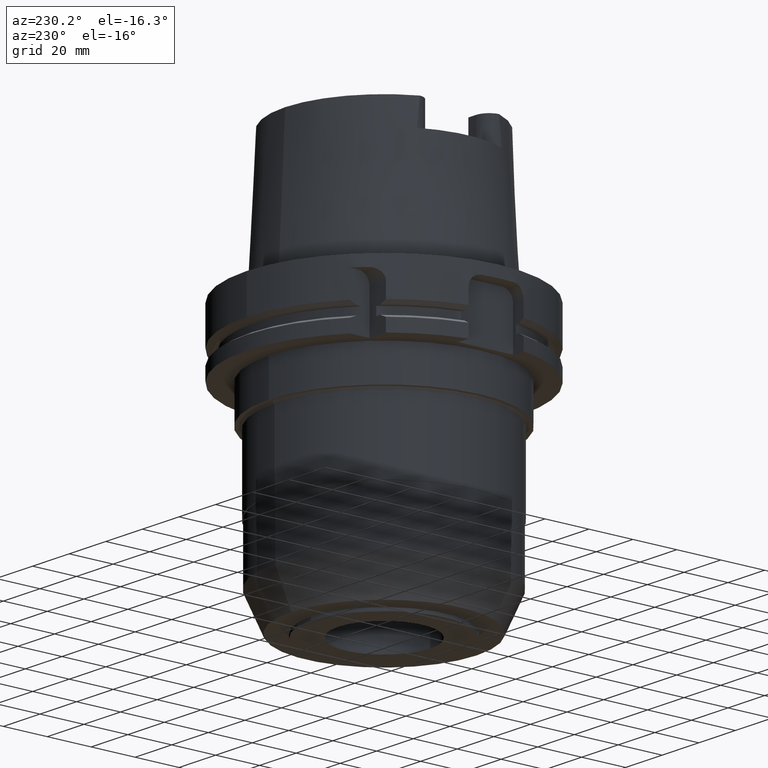
[diagram: clean part render]
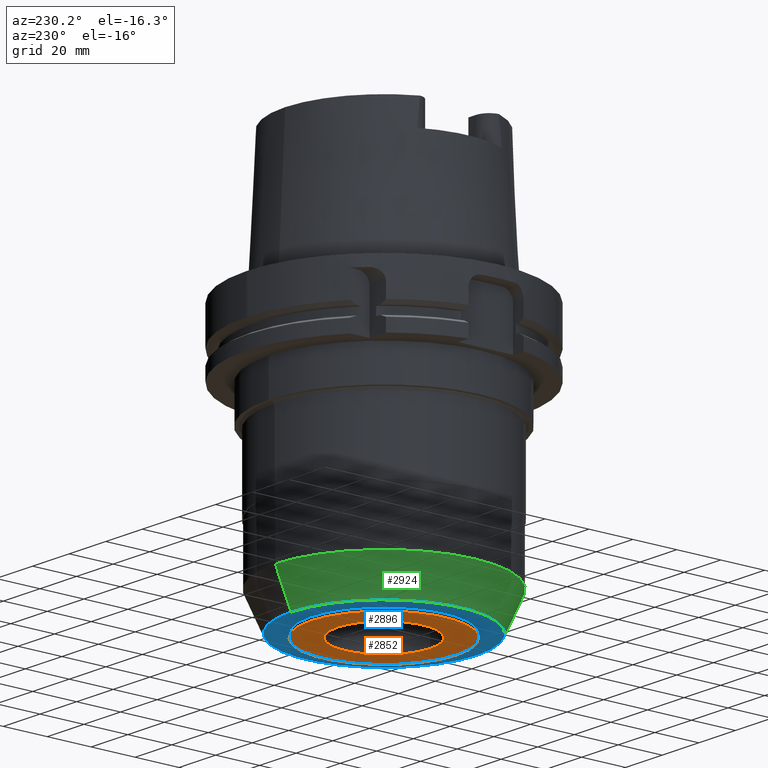
[diagram: same view with three faces highlighted in distinct colors, each labeled with its STEP entity id]
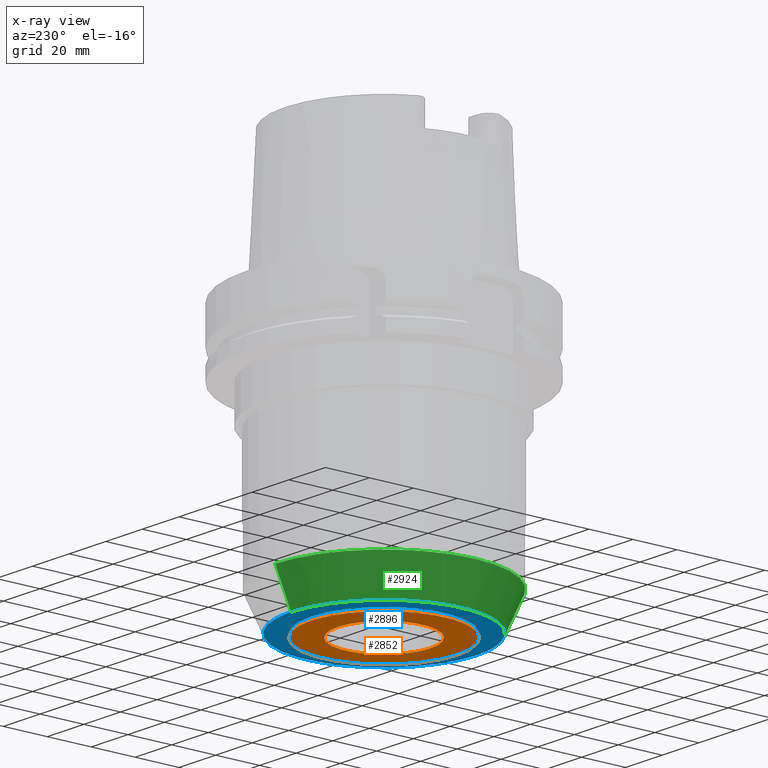
[diagram: x-ray of the same camera — body ghosted, the three highlighted faces saturated]
A machine part, auxiliary view with three faces highlighted in distinct colors.
The next image is the same camera in x-ray (body ghosted, the three faces saturated) — at least one of them is partly hidden behind the body in this view.
Their STEP definitions:

[orange] entity #2852 — the highlighted planar face has unit normal (0, 0, -1).
#689=CARTESIAN_POINT('',(0.E0,1.497130711958E-14,-1.22E2));
#690=DIRECTION('',(0.E0,0.E0,1.E0));
#691=DIRECTION('',(0.E0,-1.E0,0.E0));
#692=AXIS2_PLACEMENT_3D('',#689,#690,#691);
#697=CARTESIAN_POINT('',(0.E0,1.497130711958E-14,-1.22E2));
#698=DIRECTION('',(0.E0,0.E0,1.E0));
#699=DIRECTION('',(0.E0,1.E0,0.E0));
#700=AXIS2_PLACEMENT_3D('',#697,#698,#699);
#705=CARTESIAN_POINT('',(0.E0,1.497130711958E-14,-1.22E2));
#706=DIRECTION('',(0.E0,0.E0,-1.E0));
#707=DIRECTION('',(0.E0,-1.E0,0.E0));
#708=AXIS2_PLACEMENT_3D('',#705,#706,#707);
#713=CARTESIAN_POINT('',(0.E0,1.497130711958E-14,-1.22E2));
#714=DIRECTION('',(0.E0,0.E0,-1.E0));
#715=DIRECTION('',(0.E0,1.E0,0.E0));
#716=AXIS2_PLACEMENT_3D('',#713,#714,#715);
#2093=CARTESIAN_POINT('',(0.E0,2.1E1,-1.22E2));
#2094=VERTEX_POINT('',#2093);
#2095=CARTESIAN_POINT('',(0.E0,-2.1E1,-1.22E2));
#2096=VERTEX_POINT('',#2095);
#2097=CARTESIAN_POINT('',(0.E0,-3.325E1,-1.22E2));
#2098=CARTESIAN_POINT('',(0.E0,3.325E1,-1.22E2));
#2099=VERTEX_POINT('',#2097);
#2100=VERTEX_POINT('',#2098);
#2837=CARTESIAN_POINT('',(0.E0,0.E0,-1.22E2));
#2838=DIRECTION('',(0.E0,0.E0,-1.E0));
#2839=DIRECTION('',(0.E0,-1.E0,0.E0));
#2840=AXIS2_PLACEMENT_3D('',#2837,#2838,#2839);
#2841=PLANE('',#2840);
#2843=ORIENTED_EDGE('',*,*,#2842,.T.);
#2845=ORIENTED_EDGE('',*,*,#2844,.T.);
#2846=EDGE_LOOP('',(#2843,#2845));
#2847=FACE_OUTER_BOUND('',#2846,.F.);
#2848=ORIENTED_EDGE('',*,*,#2830,.T.);
#2849=ORIENTED_EDGE('',*,*,#2819,.T.);
#2850=EDGE_LOOP('',(#2848,#2849));
#2851=FACE_BOUND('',#2850,.F.);
#693=CIRCLE('',#692,3.325E1);
#701=CIRCLE('',#700,3.325E1);
#709=CIRCLE('',#708,2.1E1);
#717=CIRCLE('',#716,2.1E1);
#2819=EDGE_CURVE('',#2094,#2096,#717,.T.);
#2830=EDGE_CURVE('',#2096,#2094,#709,.T.);
#2842=EDGE_CURVE('',#2099,#2100,#693,.T.);
#2844=EDGE_CURVE('',#2100,#2099,#701,.T.);
#2852=ADVANCED_FACE('',(#2847,#2851),#2841,.T.);

[blue] entity #2896 — the highlighted planar face has unit normal (0, 0, -1).
#735=CARTESIAN_POINT('',(0.E0,0.E0,-1.205E2));
#736=DIRECTION('',(0.E0,0.E0,1.E0));
#737=DIRECTION('',(0.E0,-1.E0,0.E0));
#738=AXIS2_PLACEMENT_3D('',#735,#736,#737);
#743=CARTESIAN_POINT('',(0.E0,0.E0,-1.205E2));
#744=DIRECTION('',(0.E0,0.E0,1.E0));
#745=DIRECTION('',(0.E0,1.E0,0.E0));
#746=AXIS2_PLACEMENT_3D('',#743,#744,#745);
#751=CARTESIAN_POINT('',(0.E0,1.497130711958E-14,-1.205E2));
#752=DIRECTION('',(0.E0,0.E0,-1.E0));
#753=DIRECTION('',(0.E0,-1.E0,0.E0));
#754=AXIS2_PLACEMENT_3D('',#751,#752,#753);
#759=CARTESIAN_POINT('',(0.E0,1.497130711958E-14,-1.205E2));
#760=DIRECTION('',(0.E0,0.E0,-1.E0));
#761=DIRECTION('',(0.E0,1.E0,0.E0));
#762=AXIS2_PLACEMENT_3D('',#759,#760,#761);
#2101=CARTESIAN_POINT('',(0.E0,3.325E1,-1.205E2));
#2102=VERTEX_POINT('',#2101);
#2103=CARTESIAN_POINT('',(0.E0,-3.325E1,-1.205E2));
#2104=VERTEX_POINT('',#2103);
#2105=CARTESIAN_POINT('',(0.E0,-4.228729529800E1,-1.205E2));
#2106=CARTESIAN_POINT('',(0.E0,4.228729529800E1,-1.205E2));
#2107=VERTEX_POINT('',#2105);
#2108=VERTEX_POINT('',#2106);
#2881=CARTESIAN_POINT('',(0.E0,0.E0,-1.205E2));
#2882=DIRECTION('',(0.E0,0.E0,-1.E0));
#2883=DIRECTION('',(0.E0,-1.E0,0.E0));
#2884=AXIS2_PLACEMENT_3D('',#2881,#2882,#2883);
#2885=PLANE('',#2884);
#2887=ORIENTED_EDGE('',*,*,#2886,.T.);
#2889=ORIENTED_EDGE('',*,*,#2888,.T.);
#2890=EDGE_LOOP('',(#2887,#2889));
#2891=FACE_OUTER_BOUND('',#2890,.F.);
#2892=ORIENTED_EDGE('',*,*,#2874,.T.);
#2893=ORIENTED_EDGE('',*,*,#2863,.T.);
#2894=EDGE_LOOP('',(#2892,#2893));
#2895=FACE_BOUND('',#2894,.F.);
#739=CIRCLE('',#738,4.228729529800E1);
#747=CIRCLE('',#746,4.228729529800E1);
#755=CIRCLE('',#754,3.325E1);
#763=CIRCLE('',#762,3.325E1);
#2863=EDGE_CURVE('',#2102,#2104,#763,.T.);
#2874=EDGE_CURVE('',#2104,#2102,#755,.T.);
#2886=EDGE_CURVE('',#2107,#2108,#739,.T.);
#2888=EDGE_CURVE('',#2108,#2107,#747,.T.);
#2896=ADVANCED_FACE('',(#2891,#2895),#2885,.T.);

[green] entity #2924 — the highlighted conical surface has half-angle 24 deg.
#743=CARTESIAN_POINT('',(0.E0,0.E0,-1.205E2));
#744=DIRECTION('',(0.E0,0.E0,1.E0));
#745=DIRECTION('',(0.E0,1.E0,0.E0));
#746=AXIS2_PLACEMENT_3D('',#743,#744,#745);
#767=DIRECTION('',(0.E0,-4.067366430758E-1,-9.135454576426E-1));
#768=VECTOR('',#767,1.773310771180E1);
#769=CARTESIAN_POINT('',(0.E0,4.95E1,-1.043E2));
#770=LINE('',#769,#768);
#782=CARTESIAN_POINT('',(0.E0,0.E0,-1.043E2));
#783=DIRECTION('',(0.E0,0.E0,1.E0));
#784=DIRECTION('',(0.E0,1.E0,0.E0));
#785=AXIS2_PLACEMENT_3D('',#782,#783,#784);
#790=DIRECTION('',(0.E0,4.067366430758E-1,-9.135454576426E-1));
#791=VECTOR('',#790,1.773310771180E1);
#792=CARTESIAN_POINT('',(0.E0,-4.95E1,-1.043E2));
#793=LINE('',#792,#791);
#2105=CARTESIAN_POINT('',(0.E0,-4.228729529800E1,-1.205E2));
#2106=CARTESIAN_POINT('',(0.E0,4.228729529800E1,-1.205E2));
#2107=VERTEX_POINT('',#2105);
#2108=VERTEX_POINT('',#2106);
#2109=CARTESIAN_POINT('',(0.E0,4.95E1,-1.043E2));
#2110=VERTEX_POINT('',#2109);
#2111=CARTESIAN_POINT('',(0.E0,-4.95E1,-1.043E2));
#2112=VERTEX_POINT('',#2111);
#2912=CARTESIAN_POINT('',(0.E0,0.E0,-1.124E2));
#2913=DIRECTION('',(0.E0,0.E0,1.E0));
#2914=DIRECTION('',(0.E0,1.E0,0.E0));
#2915=AXIS2_PLACEMENT_3D('',#2912,#2913,#2914);
#2916=CONICAL_SURFACE('',#2915,4.589364764900E1,2.4E1);
#2917=ORIENTED_EDGE('',*,*,#2902,.F.);
#2919=ORIENTED_EDGE('',*,*,#2918,.T.);
#2920=ORIENTED_EDGE('',*,*,#2905,.T.);
#2921=ORIENTED_EDGE('',*,*,#2888,.F.);
#2922=EDGE_LOOP('',(#2917,#2919,#2920,#2921));
#2923=FACE_OUTER_BOUND('',#2922,.F.);
#747=CIRCLE('',#746,4.228729529800E1);
#786=CIRCLE('',#785,4.95E1);
#2888=EDGE_CURVE('',#2108,#2107,#747,.T.);
#2902=EDGE_CURVE('',#2110,#2108,#770,.T.);
#2905=EDGE_CURVE('',#2112,#2107,#793,.T.);
#2918=EDGE_CURVE('',#2110,#2112,#786,.T.);
#2924=ADVANCED_FACE('',(#2923),#2916,.T.);